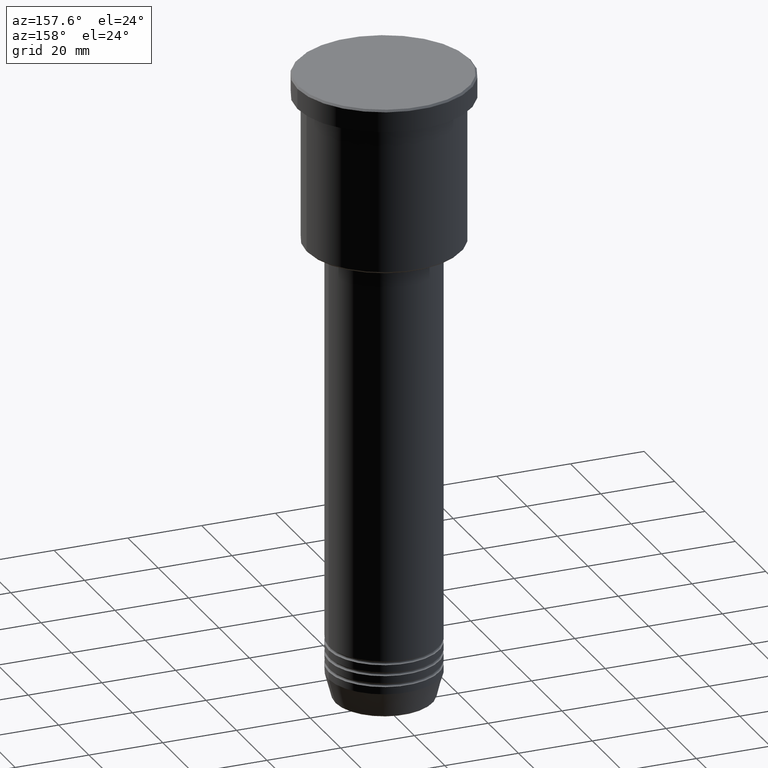
[diagram: clean part render]
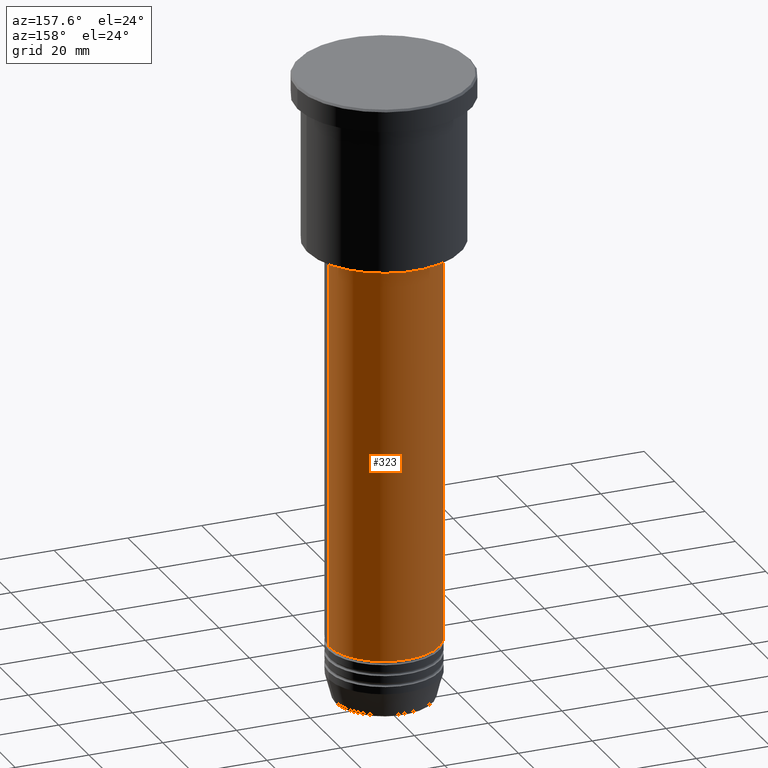
[diagram: same view with one face highlighted and labeled with its STEP entity id]
A machine part, auxiliary view. The second image highlights one B-rep face of the part: STEP entity #323.
In plain terms, the highlighted cylindrical surface (partial cylindrical patch) has radius 15 mm, axis along (-0, -0, 1).
Its self-contained STEP definition (entity closure, byte-faithful):
#21 = EDGE_CURVE ( 'NONE', #988, #144, #609, .T. ) ;
#31 = ORIENTED_EDGE ( 'NONE', *, *, #614, .T. ) ;
#55 = CIRCLE ( 'NONE', #93, 15.00000000000000000 ) ;
#59 = ORIENTED_EDGE ( 'NONE', *, *, #531, .F. ) ;
#75 = VECTOR ( 'NONE', #1077, 1000.000000000000000 ) ;
#80 = ORIENTED_EDGE ( 'NONE', *, *, #21, .F. ) ;
#93 = AXIS2_PLACEMENT_3D ( 'NONE', #1087, #452, #818 ) ;
#126 = ORIENTED_EDGE ( 'NONE', *, *, #473, .T. ) ;
#144 = VERTEX_POINT ( 'NONE', #527 ) ;
#156 = CYLINDRICAL_SURFACE ( 'NONE', #1041, 15.00000000000000000 ) ;
#161 = CARTESIAN_POINT ( 'NONE',  ( 0.000000000000000000, 0.000000000000000000, -154.9999999999999716 ) ) ;
#253 = CARTESIAN_POINT ( 'NONE',  ( 0.000000000000000000, 0.000000000000000000, 0.000000000000000000 ) ) ;
#323 = ADVANCED_FACE ( 'NONE', ( #674 ), #156, .T. ) ;
#341 = DIRECTION ( 'NONE',  ( 1.000000000000000000, 0.000000000000000000, 0.000000000000000000 ) ) ;
#407 = VERTEX_POINT ( 'NONE', #933 ) ;
#426 = AXIS2_PLACEMENT_3D ( 'NONE', #161, #1175, #341 ) ;
#452 = DIRECTION ( 'NONE',  ( -0.000000000000000000, -0.000000000000000000, 1.000000000000000000 ) ) ;
#457 = CARTESIAN_POINT ( 'NONE',  ( 15.00000000000000000, 0.000000000000000000, -154.9999999999999716 ) ) ;
#459 = VECTOR ( 'NONE', #701, 1000.000000000000000 ) ;
#473 = EDGE_CURVE ( 'NONE', #505, #407, #680, .T. ) ;
#505 = VERTEX_POINT ( 'NONE', #992 ) ;
#517 = DIRECTION ( 'NONE',  ( -0.000000000000000000, -0.000000000000000000, 1.000000000000000000 ) ) ;
#527 = CARTESIAN_POINT ( 'NONE',  ( 15.00000000000000000, 0.000000000000000000, -47.00000000000000711 ) ) ;
#531 = EDGE_CURVE ( 'NONE', #144, #407, #55, .T. ) ;
#609 = LINE ( 'NONE', #1072, #459 ) ;
#614 = EDGE_CURVE ( 'NONE', #988, #505, #1001, .T. ) ;
#674 = FACE_OUTER_BOUND ( 'NONE', #875, .T. ) ;
#680 = LINE ( 'NONE', #1055, #75 ) ;
#701 = DIRECTION ( 'NONE',  ( -0.000000000000000000, -0.000000000000000000, 1.000000000000000000 ) ) ;
#818 = DIRECTION ( 'NONE',  ( 1.000000000000000000, 0.000000000000000000, 0.000000000000000000 ) ) ;
#875 = EDGE_LOOP ( 'NONE', ( #31, #126, #59, #80 ) ) ;
#884 = DIRECTION ( 'NONE',  ( 1.000000000000000000, 0.000000000000000000, 0.000000000000000000 ) ) ;
#933 = CARTESIAN_POINT ( 'NONE',  ( -15.00000000000000000, 1.836970198721029589E-15, -47.00000000000000711 ) ) ;
#988 = VERTEX_POINT ( 'NONE', #457 ) ;
#992 = CARTESIAN_POINT ( 'NONE',  ( -15.00000000000000000, 1.836970198721029589E-15, -154.9999999999999716 ) ) ;
#1001 = CIRCLE ( 'NONE', #426, 15.00000000000000000 ) ;
#1041 = AXIS2_PLACEMENT_3D ( 'NONE', #253, #517, #884 ) ;
#1055 = CARTESIAN_POINT ( 'NONE',  ( -15.00000000000000000, 1.836970198721029589E-15, 0.000000000000000000 ) ) ;
#1072 = CARTESIAN_POINT ( 'NONE',  ( 15.00000000000000000, 0.000000000000000000, 0.000000000000000000 ) ) ;
#1077 = DIRECTION ( 'NONE',  ( -0.000000000000000000, -0.000000000000000000, 1.000000000000000000 ) ) ;
#1087 = CARTESIAN_POINT ( 'NONE',  ( 0.000000000000000000, 0.000000000000000000, -47.00000000000000711 ) ) ;
#1175 = DIRECTION ( 'NONE',  ( -0.000000000000000000, -0.000000000000000000, 1.000000000000000000 ) ) ;